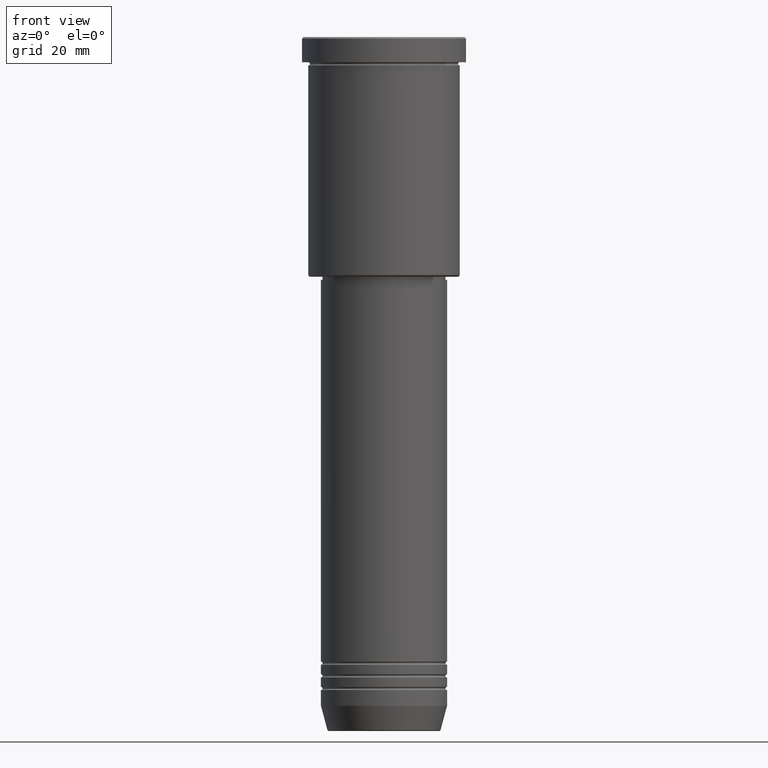
[diagram: clean part render]
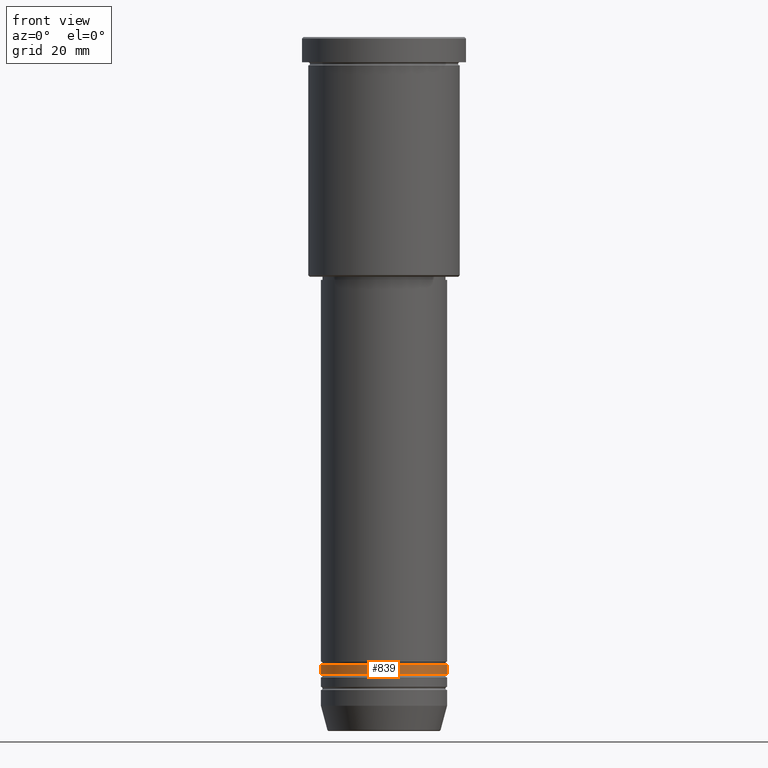
[diagram: same view with one face highlighted and labeled with its STEP entity id]
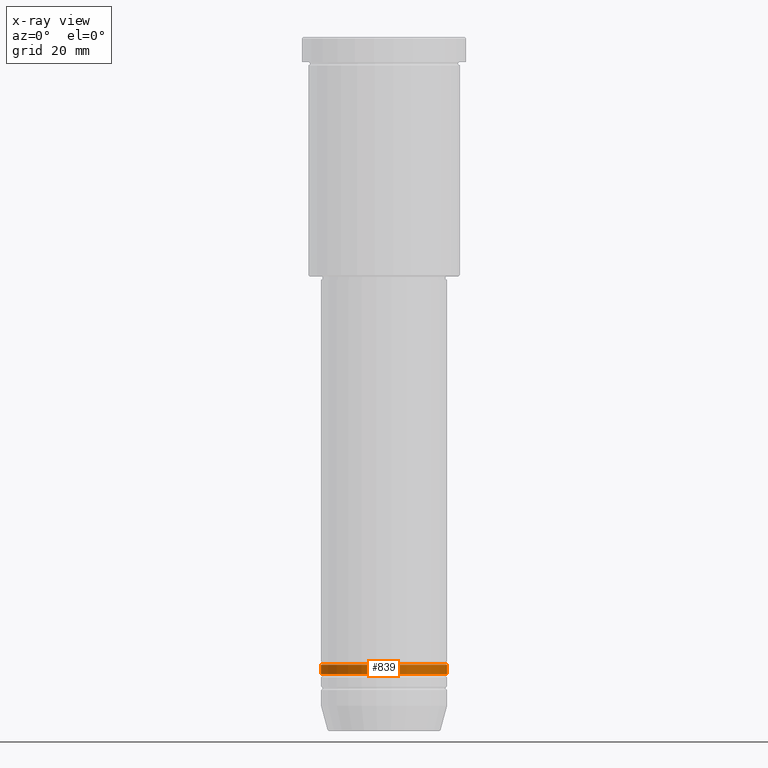
[diagram: x-ray of the same camera — body ghosted, the highlighted face saturated]
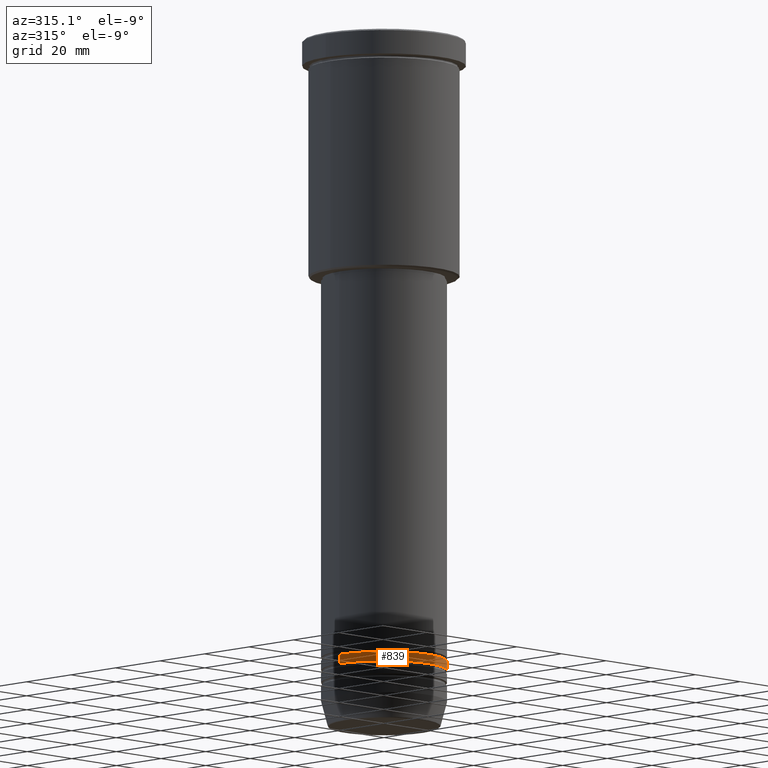
[diagram: same view with one face highlighted and labeled with its STEP entity id]
A machine part, front view. The second image highlights one B-rep face of the part: STEP entity #839.
The next image is the same camera in x-ray: the body ghosted, the highlighted face saturated — about 0% of this face is hidden behind the body in this view.
A second angle (auxiliary view) of the same face is appended — the face is thin or edge-on in the first view.
In plain terms, the highlighted cylindrical surface (partial cylindrical patch) has radius 20 mm, axis along (-0, -0, 1).
Its self-contained STEP definition (entity closure, byte-faithful):
#27 = LINE ( 'NONE', #134, #1052 ) ;
#32 = DIRECTION ( 'NONE',  ( -0.000000000000000000, -0.000000000000000000, 1.000000000000000000 ) ) ;
#45 = VERTEX_POINT ( 'NONE', #1088 ) ;
#134 = CARTESIAN_POINT ( 'NONE',  ( -20.00000000000000355, 2.449293598294706907E-15, 0.000000000000000000 ) ) ;
#150 = ORIENTED_EDGE ( 'NONE', *, *, #510, .T. ) ;
#163 = ORIENTED_EDGE ( 'NONE', *, *, #717, .F. ) ;
#216 = AXIS2_PLACEMENT_3D ( 'NONE', #974, #1157, #882 ) ;
#277 = ORIENTED_EDGE ( 'NONE', *, *, #906, .T. ) ;
#300 = CIRCLE ( 'NONE', #854, 20.00000000000000355 ) ;
#302 = CARTESIAN_POINT ( 'NONE',  ( -20.00000000000000000, 2.449293598294706513E-15, -198.9999999999999716 ) ) ;
#319 = DIRECTION ( 'NONE',  ( 1.000000000000000000, 0.000000000000000000, 0.000000000000000000 ) ) ;
#329 = CIRCLE ( 'NONE', #581, 20.00000000000000000 ) ;
#343 = DIRECTION ( 'NONE',  ( -0.000000000000000000, -0.000000000000000000, 1.000000000000000000 ) ) ;
#369 = VERTEX_POINT ( 'NONE', #805 ) ;
#409 = CYLINDRICAL_SURFACE ( 'NONE', #216, 20.00000000000000355 ) ;
#427 = CARTESIAN_POINT ( 'NONE',  ( 0.000000000000000000, 0.000000000000000000, -198.9999999999999716 ) ) ;
#444 = DIRECTION ( 'NONE',  ( 1.000000000000000000, 0.000000000000000000, 0.000000000000000000 ) ) ;
#468 = EDGE_CURVE ( 'NONE', #816, #45, #329, .T. ) ;
#474 = CARTESIAN_POINT ( 'NONE',  ( 0.000000000000000000, 0.000000000000000000, -201.9999999999999716 ) ) ;
#510 = EDGE_CURVE ( 'NONE', #1048, #45, #553, .T. ) ;
#553 = LINE ( 'NONE', #1015, #966 ) ;
#581 = AXIS2_PLACEMENT_3D ( 'NONE', #427, #343, #319 ) ;
#717 = EDGE_CURVE ( 'NONE', #369, #816, #27, .T. ) ;
#805 = CARTESIAN_POINT ( 'NONE',  ( -20.00000000000000355, 2.449293598294706907E-15, -201.9999999999999716 ) ) ;
#816 = VERTEX_POINT ( 'NONE', #302 ) ;
#831 = DIRECTION ( 'NONE',  ( -0.000000000000000000, -0.000000000000000000, 1.000000000000000000 ) ) ;
#839 = ADVANCED_FACE ( 'NONE', ( #1064 ), #409, .T. ) ;
#843 = ORIENTED_EDGE ( 'NONE', *, *, #468, .F. ) ;
#854 = AXIS2_PLACEMENT_3D ( 'NONE', #474, #831, #444 ) ;
#882 = DIRECTION ( 'NONE',  ( 1.000000000000000000, 0.000000000000000000, 0.000000000000000000 ) ) ;
#905 = CARTESIAN_POINT ( 'NONE',  ( 20.00000000000000355, 0.000000000000000000, -201.9999999999999716 ) ) ;
#906 = EDGE_CURVE ( 'NONE', #369, #1048, #300, .T. ) ;
#966 = VECTOR ( 'NONE', #1161, 1000.000000000000000 ) ;
#974 = CARTESIAN_POINT ( 'NONE',  ( 0.000000000000000000, 0.000000000000000000, 0.000000000000000000 ) ) ;
#1001 = EDGE_LOOP ( 'NONE', ( #163, #277, #150, #843 ) ) ;
#1015 = CARTESIAN_POINT ( 'NONE',  ( 20.00000000000000355, 0.000000000000000000, 0.000000000000000000 ) ) ;
#1048 = VERTEX_POINT ( 'NONE', #905 ) ;
#1052 = VECTOR ( 'NONE', #32, 1000.000000000000000 ) ;
#1064 = FACE_OUTER_BOUND ( 'NONE', #1001, .T. ) ;
#1088 = CARTESIAN_POINT ( 'NONE',  ( 20.00000000000000000, 0.000000000000000000, -198.9999999999999716 ) ) ;
#1157 = DIRECTION ( 'NONE',  ( -0.000000000000000000, -0.000000000000000000, 1.000000000000000000 ) ) ;
#1161 = DIRECTION ( 'NONE',  ( -0.000000000000000000, -0.000000000000000000, 1.000000000000000000 ) ) ;